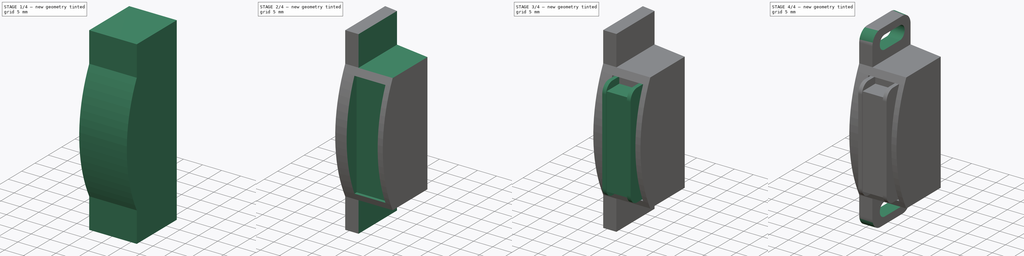
[diagram: build sequence overview — one tinted view per stage of 4, left to right]
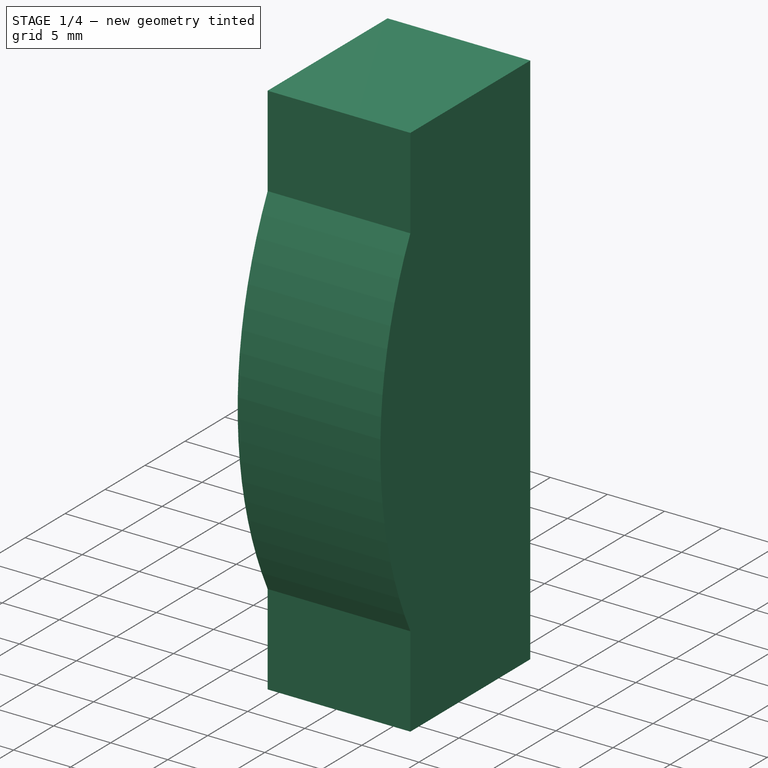
[diagram: stage 1 of 4 — iso view after this stage's code; geometry added in this stage tinted green]
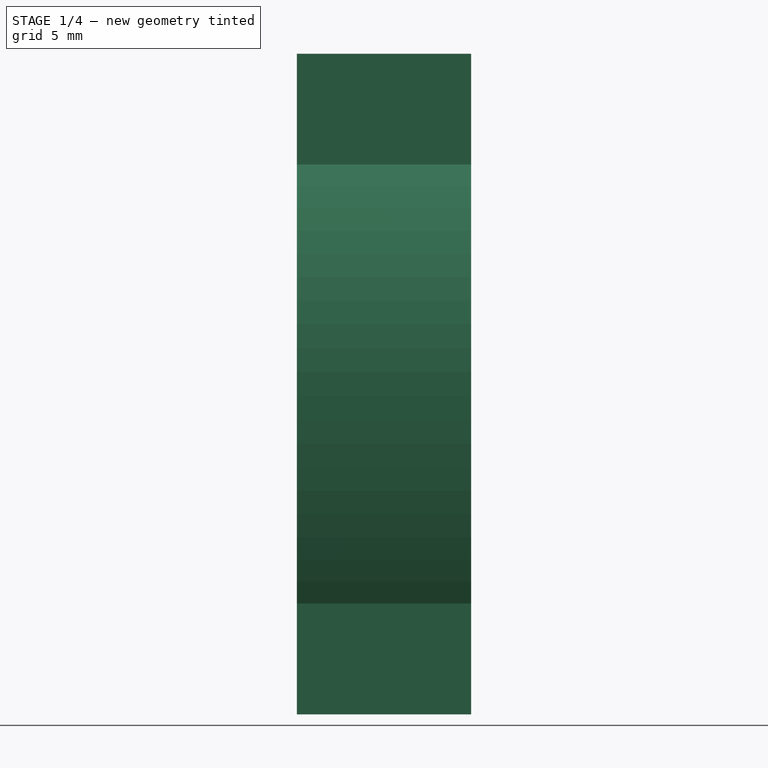
[diagram: stage 1 of 4 — front view after this stage's code; geometry added in this stage tinted green]
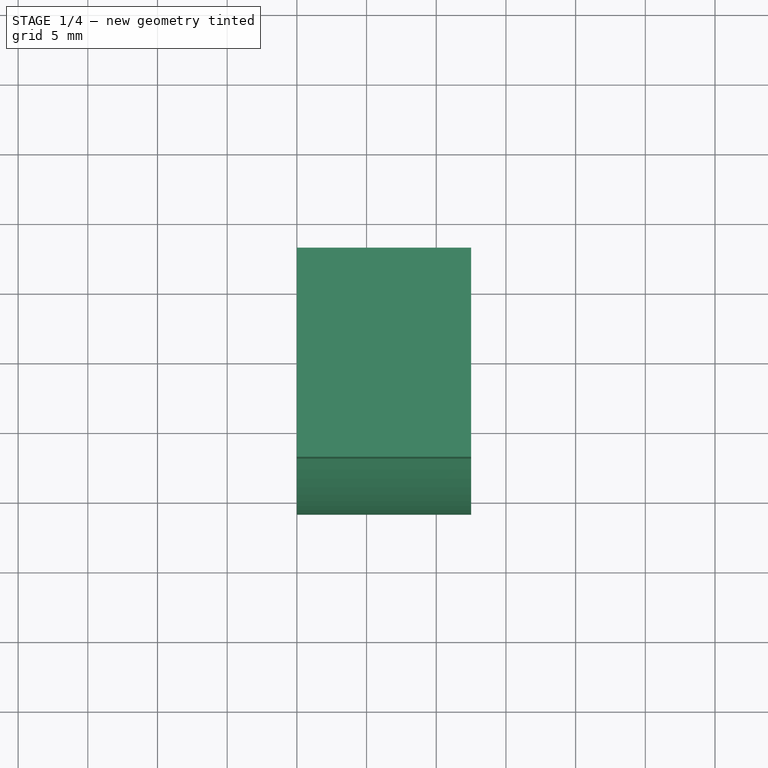
[diagram: stage 1 of 4 — top view after this stage's code; geometry added in this stage tinted green]
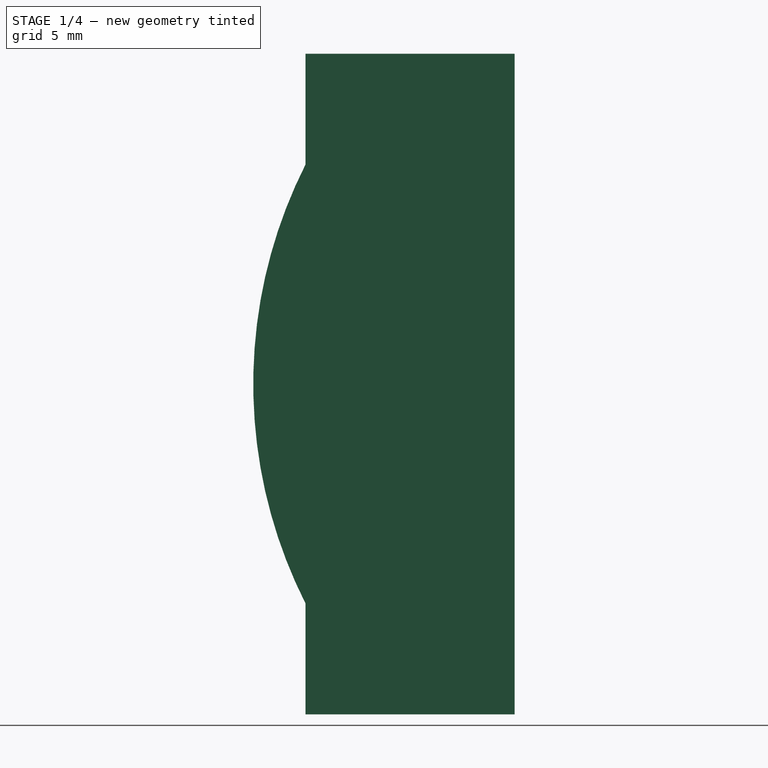
[diagram: stage 1 of 4 — right view after this stage's code; geometry added in this stage tinted green]
FCSTD DOCUMENT  (FreeCAD 0.17R13522 (Git))
Label: Mag_Lock_soprano
License: All rights reserved
LicenseURL: http://en.wikipedia.org/wiki/All_rights_reserved
objects: Sketcher::SketchObject×8, PartDesign::Pocket×5, PartDesign::Pad×3, PartDesign::Fillet×2, PartDesign::Body×1
note: 27 computed .brp shape members not serialized (recipe doc carries the construction recipe); baked Part::Feature solids carry a one-line shape summary decoded from their .brp

FEATURE [Sketcher::SketchObject] Sketch
  MapMode = 5
  Placement = pos=(0,0,0) rot=(0.57735,0.57735,0.57735;2.0944rad)
  Support = -> [YZ_Plane]
  sketch-geometry (4):
    g0: LineSegment StartX=7.5 StartY=23.7 StartZ=0 EndX=-12.5 EndY=23.7 EndZ=0
    g1: LineSegment StartX=-12.5 StartY=23.7 StartZ=0 EndX=-12.5 EndY=-23.7 EndZ=0
    g2: LineSegment StartX=-12.5 StartY=-23.7 StartZ=0 EndX=7.5 EndY=-23.7 EndZ=0
    g3: LineSegment StartX=7.5 StartY=-23.7 StartZ=0 EndX=7.5 EndY=23.7 EndZ=0
  constraints (12):
    c: Coincident(g0,g1)
    c: Coincident(g1,g2)
    c: Coincident(g2,g3)
    c: Coincident(g3,g0)
    c: Horizontal(g0)
    c: Horizontal(g2)
    c: Vertical(g1)
    c: Vertical(g3)
    c: DistanceX(g0) = 7.5
    c: DistanceY(g0) = 23.7
    c: Symmetric(g0,g2,g-1)
    c: DistanceX(g0,g0) = 20
FEATURE [PartDesign::Pad] Pad
  Length = 12.5
  Length2 = 100
  Placement = pos=(0,0,0) rot=(0.57735,0.57735,0.57735;2.0944rad)
  Profile = -> Sketch
  Type = 0
FEATURE [Sketcher::SketchObject] Sketch001
  MapMode = 5
  Placement = pos=(12.5,0,0) rot=(0.57735,0.57735,0.57735;2.0944rad)
  Support = -> [Pad]
  sketch-geometry (7):
    g0: LineSegment StartX=-7.5 StartY=23.7 StartZ=0 EndX=-7.5 EndY=15.75 EndZ=0
    g1: LineSegment StartX=-7.5 StartY=-15.75 StartZ=0 EndX=-7.5 EndY=-23.7 EndZ=0
    g2: LineSegment StartX=-7.5 StartY=-23.7 StartZ=0 EndX=-12.5 EndY=-23.7 EndZ=0
    g3: LineSegment StartX=-12.5 StartY=-23.7 StartZ=0 EndX=-12.5 EndY=23.7 EndZ=0
    g4: LineSegment StartX=-12.5 StartY=23.7 StartZ=0 EndX=-7.5 EndY=23.7 EndZ=0
    g5: ArcOfCircle CenterX=23.7 CenterY=0 CenterZ=0 NormalX=0 NormalY=0 NormalZ=1 AngleXU=0 Radius=34.95 StartAngle=2.67411 EndAngle=3.60908
    g6: LineSegment [constr] StartX=-11.25 StartY=0 StartZ=0 EndX=0 EndY=0 EndZ=0
  constraints (22):
    c: Vertical(g0)
    c: Vertical(g1)
    c: Coincident(g1,g2)
    c: Horizontal(g2)
    c: Coincident(g2,g3)
    c: Vertical(g3)
    c: Coincident(g3,g4)
    c: Coincident(g4,g0)
    c: Horizontal(g4)
    c: Coincident(g5,g0)
    c: Coincident(g5,g1)
    c: Equal(g0,g1)
    c: Equal(g4,g2)
    c: DistanceX(g2,g2) = 5
    c: DistanceX(g2) = -12.5
    c: DistanceY(g2) = -23.7
    c: Symmetric(g3,g2,g-1)
    c: DistanceY(g1,g0) = 31.5
    c: PointOnObject(g6,g5)
    c: Coincident(g6,g-1)
    c: Horizontal(g6)
    c: DistanceX(g6,g6) = 11.25
FEATURE [PartDesign::Pocket] Pocket
  BaseFeature = -> Pad
  Length = 5
  Length2 = 100
  Placement = pos=(0,0,0) rot=(0.57735,0.57735,0.57735;2.0944rad)
  Profile = -> Sketch001
  Type = 1
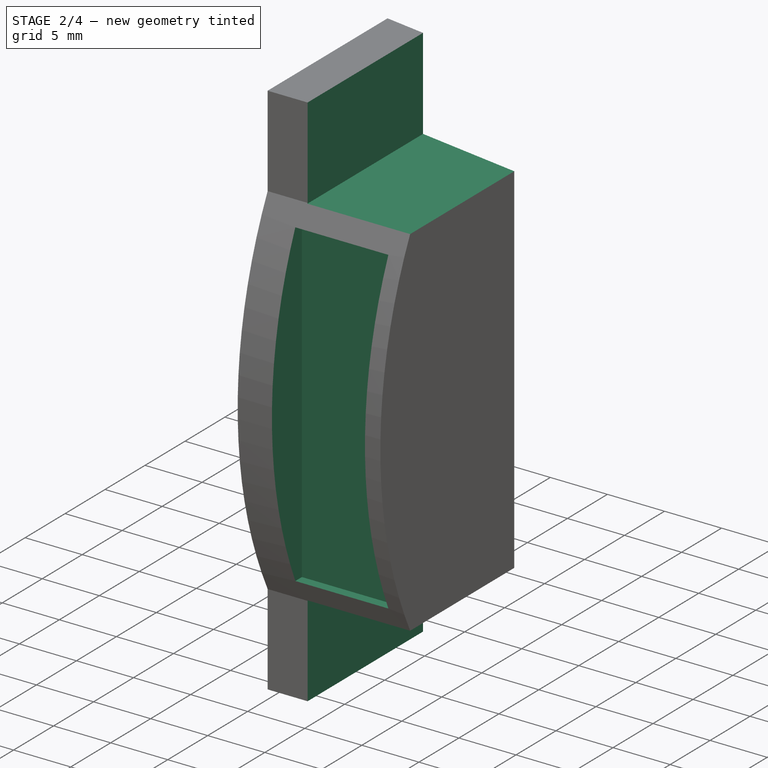
[diagram: stage 2 of 4 — iso view after this stage's code; geometry added in this stage tinted green]
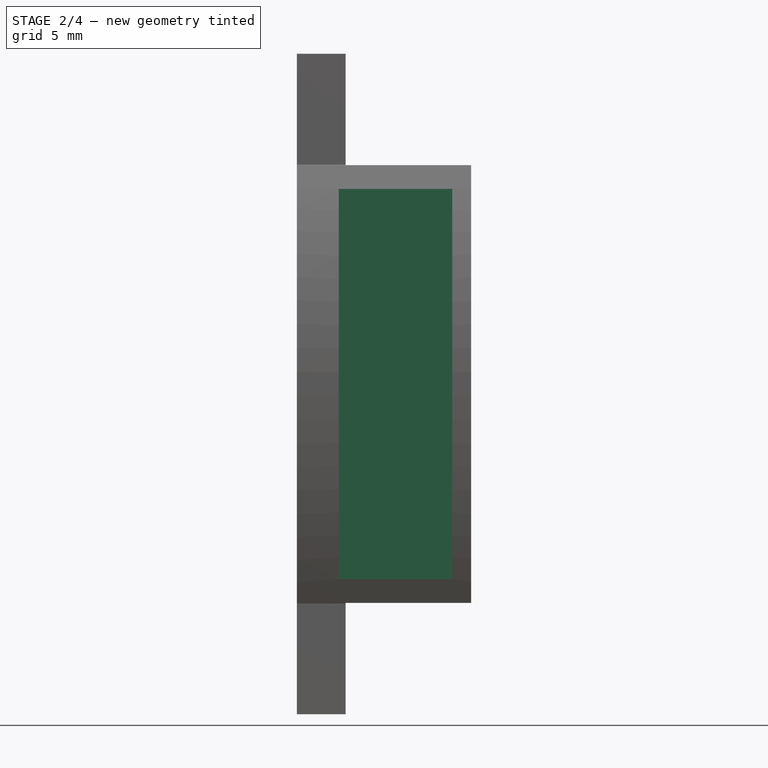
[diagram: stage 2 of 4 — front view after this stage's code; geometry added in this stage tinted green]
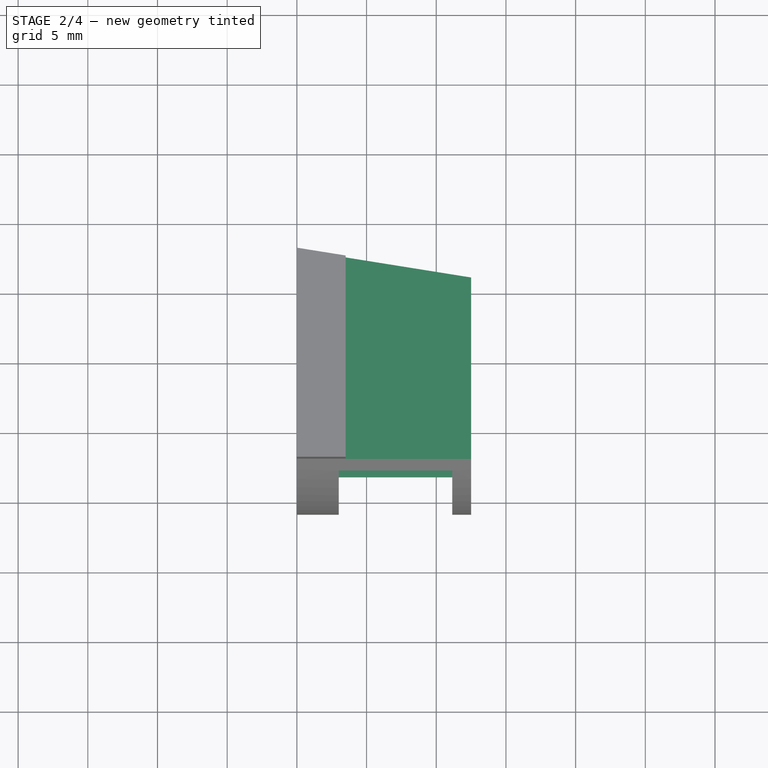
[diagram: stage 2 of 4 — top view after this stage's code; geometry added in this stage tinted green]
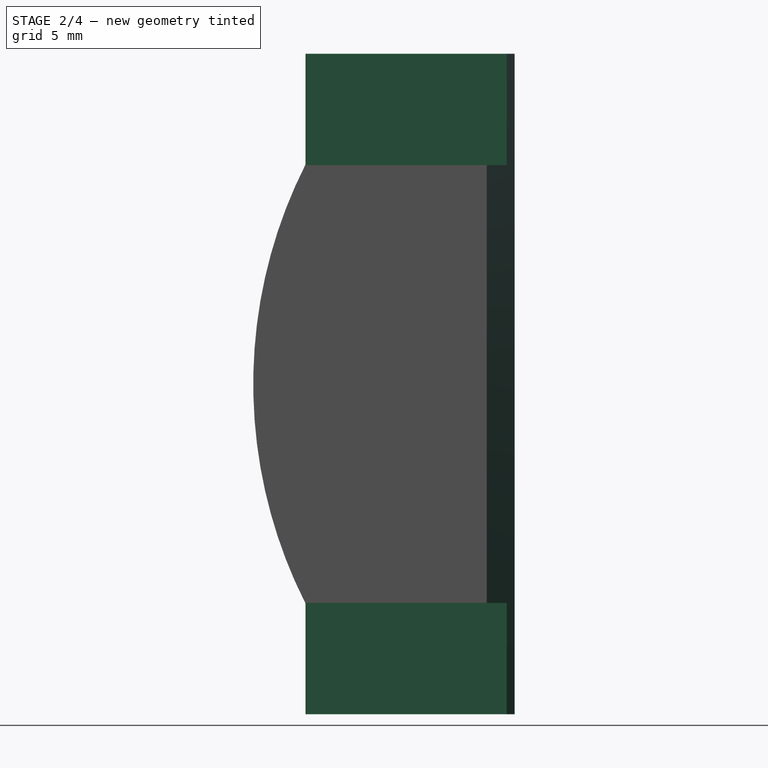
[diagram: stage 2 of 4 — right view after this stage's code; geometry added in this stage tinted green]
FEATURE [Sketcher::SketchObject] Sketch002
  MapMode = 5
  Placement = pos=(0,0,-23.7) rot=(0.707107,0.707107,0;3.14159rad)
  Support = -> [Pocket]
  sketch-geometry (3):
    g0: LineSegment StartX=7.5 StartY=0 StartZ=0 EndX=7.5 EndY=12.5 EndZ=0
    g1: LineSegment StartX=7.5 StartY=12.5 StartZ=0 EndX=5.5 EndY=12.5 EndZ=0
    g2: LineSegment StartX=5.5 StartY=12.5 StartZ=0 EndX=7.5 EndY=0 EndZ=0
  constraints (9):
    c: PointOnObject(g0,g-1)
    c: Vertical(g0)
    c: Coincident(g0,g1)
    c: Horizontal(g1)
    c: Coincident(g1,g2)
    c: Coincident(g2,g0)
    c: DistanceY(g0,g0) = 12.5
    c: DistanceX(g1,g1) = 2
    c: DistanceX(g0) = 7.5
FEATURE [PartDesign::Pocket] Pocket001
  BaseFeature = -> Pocket
  Length = 5
  Length2 = 100
  Placement = pos=(0,0,0) rot=(0.57735,0.57735,0.57735;2.0944rad)
  Profile = -> Sketch002
  Type = 1
FEATURE [Sketcher::SketchObject] Sketch003
  MapMode = 5
  Placement = pos=(12.5,0,0) rot=(0.57735,0.57735,0.57735;2.0944rad)
  Support = -> [Pocket001]
  sketch-geometry (8):
    g0: LineSegment StartX=-12.5 StartY=15.7 StartZ=0 EndX=7.5 EndY=15.7 EndZ=0
    g1: LineSegment StartX=7.5 StartY=15.7 StartZ=0 EndX=7.5 EndY=23.7 EndZ=0
    g2: LineSegment StartX=7.5 StartY=23.7 StartZ=0 EndX=-12.5 EndY=23.7 EndZ=0
    g3: LineSegment StartX=-12.5 StartY=23.7 StartZ=0 EndX=-12.5 EndY=15.7 EndZ=0
    g4: LineSegment StartX=-12.5 StartY=-23.7 StartZ=0 EndX=7.5 EndY=-23.7 EndZ=0
    g5: LineSegment StartX=7.5 StartY=-23.7 StartZ=0 EndX=7.5 EndY=-15.7 EndZ=0
    g6: LineSegment StartX=7.5 StartY=-15.7 StartZ=0 EndX=-12.5 EndY=-15.7 EndZ=0
    g7: LineSegment StartX=-12.5 StartY=-15.7 StartZ=0 EndX=-12.5 EndY=-23.7 EndZ=0
  constraints (23):
    c: Coincident(g0,g1)
    c: Coincident(g1,g2)
    c: Coincident(g2,g3)
    c: Coincident(g3,g0)
    c: Horizontal(g0)
    c: Horizontal(g2)
    c: Vertical(g1)
    c: Vertical(g3)
    c: Coincident(g4,g5)
    c: Coincident(g5,g6)
    c: Coincident(g6,g7)
    c: Coincident(g7,g4)
    c: Horizontal(g4)
    c: Horizontal(g6)
    c: Vertical(g5)
    c: Vertical(g7)
    c: DistanceX(g2,g2) = 20
    c: DistanceY(g1,g1) = 8
    c: DistanceX(g1) = 7.5
    c: DistanceY(g1) = 23.7
    c: Equal(g4,g2)
    c: Equal(g1,g5)
    c: Symmetric(g1,g4,g-1)
FEATURE [PartDesign::Pocket] Pocket002
  BaseFeature = -> Pocket001
  Length = 9
  Length2 = 100
  Placement = pos=(0,0,0) rot=(0.57735,0.57735,0.57735;2.0944rad)
  Profile = -> Sketch003
  Type = 0
FEATURE [Sketcher::SketchObject] Sketch004
  MapMode = 5
  Placement = pos=(0,-7.5,0) rot=(0.57735,0.57735,-0.57735;2.0944rad)
  Support = -> [Pocket002]
  sketch-geometry (4):
    g0: LineSegment StartX=-14 StartY=11.15 StartZ=0 EndX=14 EndY=11.15 EndZ=0
    g1: LineSegment StartX=14 StartY=11.15 StartZ=0 EndX=14 EndY=3 EndZ=0
    g2: LineSegment StartX=14 StartY=3 StartZ=0 EndX=-14 EndY=3 EndZ=0
    g3: LineSegment StartX=-14 StartY=3 StartZ=0 EndX=-14 EndY=11.15 EndZ=0
  constraints (12):
    c: Coincident(g0,g1)
    c: Coincident(g1,g2)
    c: Coincident(g2,g3)
    c: Coincident(g3,g0)
    c: Horizontal(g0)
    c: Horizontal(g2)
    c: Vertical(g1)
    c: Vertical(g3)
    c: DistanceY(g3,g3) = 8.15
    c: DistanceX(g0,g0) = 28
    c: DistanceX(g1) = 14
    c: DistanceY(g1) = 3
FEATURE [PartDesign::Pocket] Pocket003
  BaseFeature = -> Pocket002
  Length = 5
  Length2 = 100
  Placement = pos=(0,0,0) rot=(0.57735,0.57735,0.57735;2.0944rad)
  Profile = -> Sketch004
  Reversed = true
  Type = 1
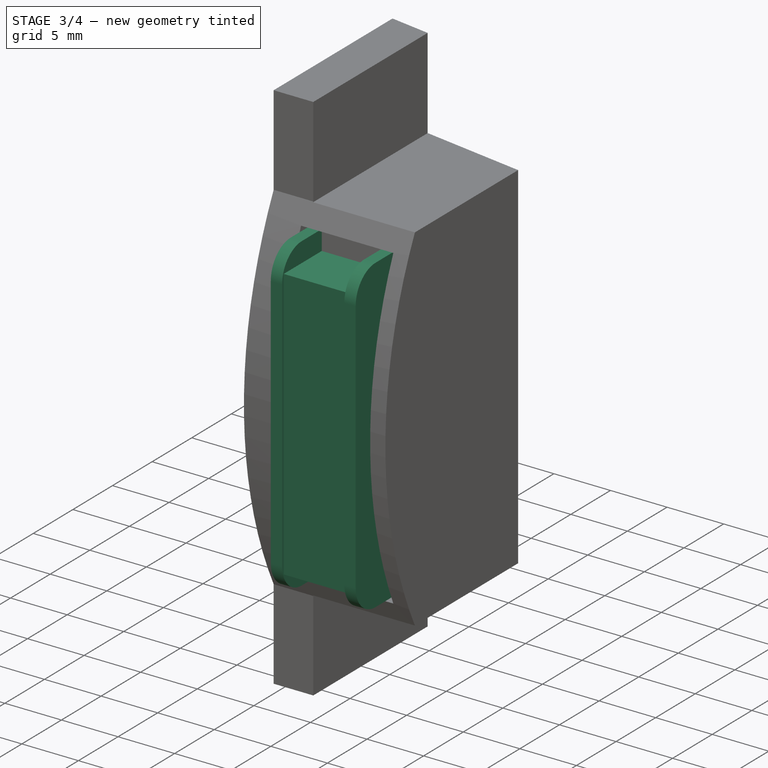
[diagram: stage 3 of 4 — iso view after this stage's code; geometry added in this stage tinted green]
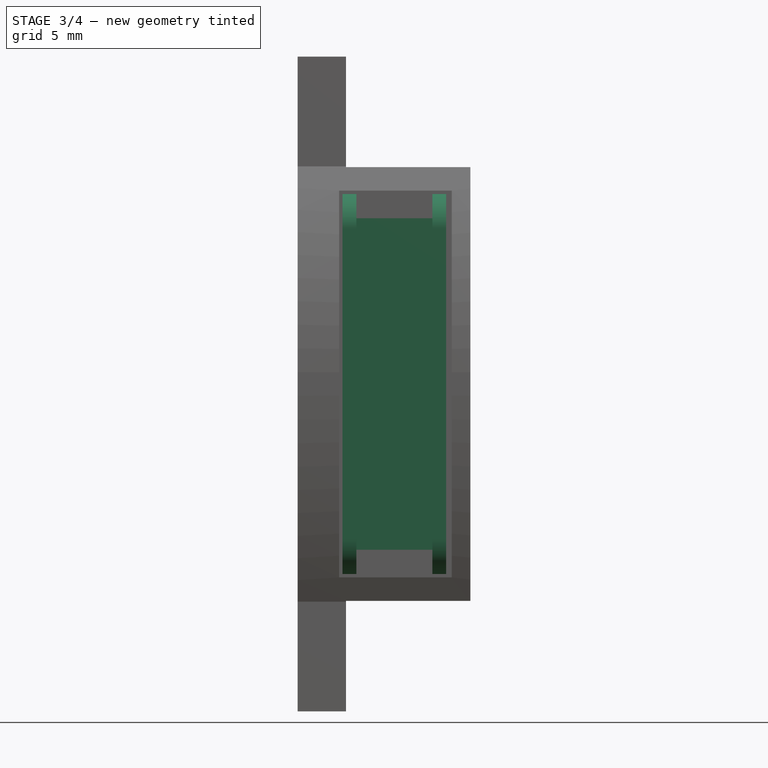
[diagram: stage 3 of 4 — front view after this stage's code; geometry added in this stage tinted green]
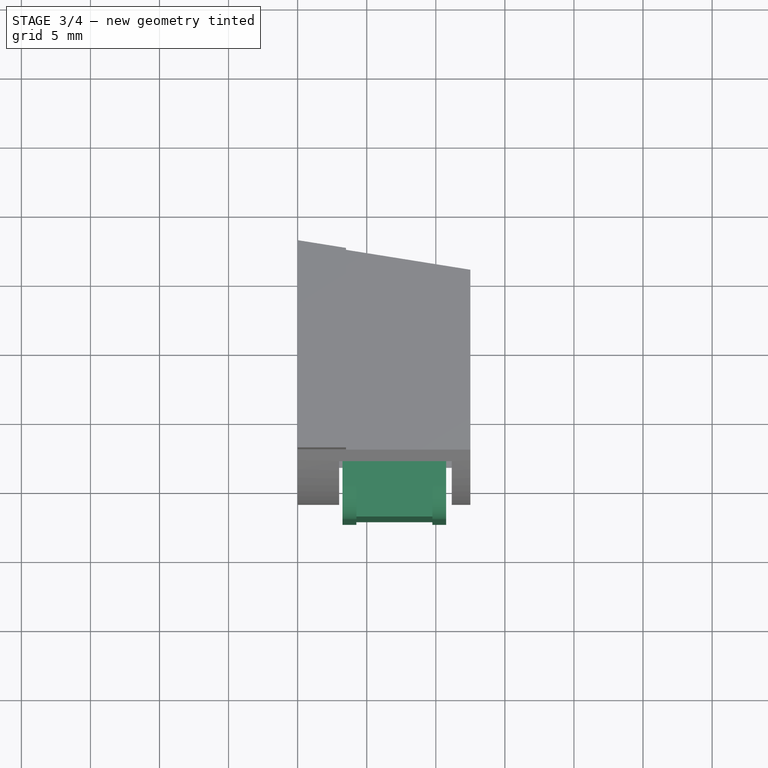
[diagram: stage 3 of 4 — top view after this stage's code; geometry added in this stage tinted green]
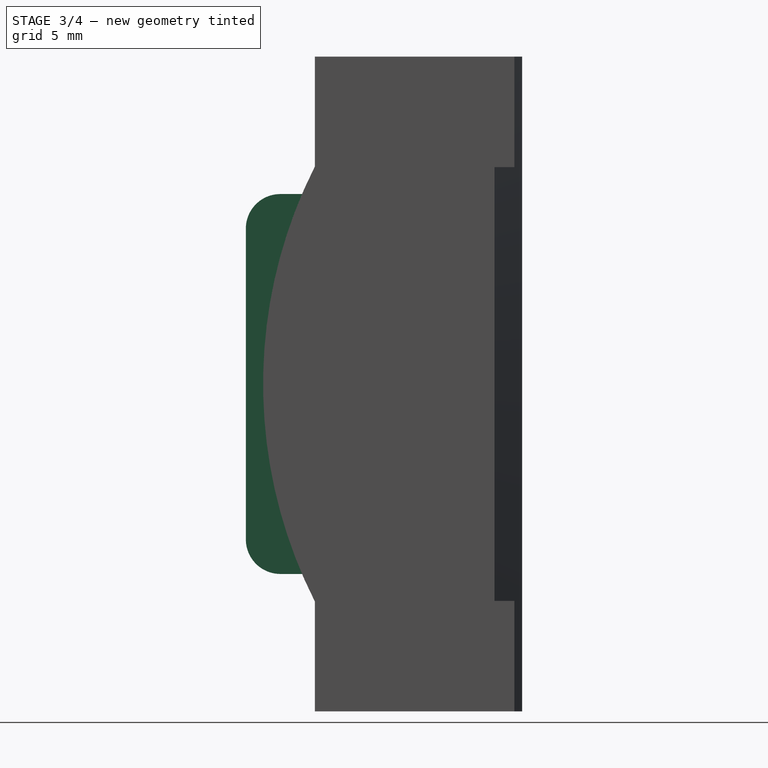
[diagram: stage 3 of 4 — right view after this stage's code; geometry added in this stage tinted green]
FEATURE [Sketcher::SketchObject] Sketch005
  MapMode = 5
  Placement = pos=(0,-7.5,0) rot=(0.57735,0.57735,-0.57735;2.0944rad)
  Support = -> [Pocket003]
  sketch-geometry (8):
    g0: LineSegment StartX=-13.75 StartY=10.75 StartZ=0 EndX=13.75 EndY=10.75 EndZ=0
    g1: LineSegment StartX=13.75 StartY=10.75 StartZ=0 EndX=13.75 EndY=9.75 EndZ=0
    g2: LineSegment StartX=13.75 StartY=9.75 StartZ=0 EndX=-13.75 EndY=9.75 EndZ=0
    g3: LineSegment StartX=-13.75 StartY=9.75 StartZ=0 EndX=-13.75 EndY=10.75 EndZ=0
    g4: LineSegment StartX=-13.75 StartY=4.25 StartZ=0 EndX=13.75 EndY=4.25 EndZ=0
    g5: LineSegment StartX=13.75 StartY=4.25 StartZ=0 EndX=13.75 EndY=3.25 EndZ=0
    g6: LineSegment StartX=13.75 StartY=3.25 StartZ=0 EndX=-13.75 EndY=3.25 EndZ=0
    g7: LineSegment StartX=-13.75 StartY=3.25 StartZ=0 EndX=-13.75 EndY=4.25 EndZ=0
  constraints (24):
    c: Coincident(g0,g1)
    c: Coincident(g1,g2)
    c: Coincident(g2,g3)
    c: Coincident(g3,g0)
    c: Horizontal(g0)
    c: Horizontal(g2)
    c: Vertical(g1)
    c: Vertical(g3)
    c: Coincident(g4,g5)
    c: Coincident(g5,g6)
    c: Coincident(g6,g7)
    c: Coincident(g7,g4)
    c: Horizontal(g4)
    c: Horizontal(g6)
    c: Vertical(g5)
    c: Vertical(g7)
    c: DistanceX(g0,g0) = 27.5
    c: DistanceY(g3,g3) = 1
    c: Equal(g0,g6)
    c: Equal(g7,g3)
    c: Symmetric(g6,g5,g-2)
    c: PointOnObject(g4,g3)
    c: DistanceY(g6) = 3.25
    c: DistanceY(g6,g0) = 7.5
FEATURE [PartDesign::Pad] Pad001
  BaseFeature = -> Pocket003
  Length = 5
  Length2 = 100
  Placement = pos=(0,0,0) rot=(0.57735,0.57735,0.57735;2.0944rad)
  Profile = -> Sketch005
  Type = 0
FEATURE [Sketcher::SketchObject] Sketch006
  MapMode = 5
  Placement = pos=(0,-7.5,0) rot=(0.57735,0.57735,-0.57735;2.0944rad)
  Support = -> [Pad001]
  sketch-geometry (4):
    g0: LineSegment StartX=-12 StartY=9.75 StartZ=0 EndX=12 EndY=9.75 EndZ=0
    g1: LineSegment StartX=12 StartY=9.75 StartZ=0 EndX=12 EndY=4.25 EndZ=0
    g2: LineSegment StartX=12 StartY=4.25 StartZ=0 EndX=-12 EndY=4.25 EndZ=0
    g3: LineSegment StartX=-12 StartY=4.25 StartZ=0 EndX=-12 EndY=9.75 EndZ=0
  constraints (12):
    c: Coincident(g0,g1)
    c: Coincident(g1,g2)
    c: Coincident(g2,g3)
    c: Coincident(g3,g0)
    c: Horizontal(g0)
    c: Horizontal(g2)
    c: Vertical(g1)
    c: Vertical(g3)
    c: DistanceX(g0,g0) = 24
    c: Symmetric(g0,g0,g-2)
    c: DistanceY(g1) = 4.25
    c: DistanceY(g1,g1) = 5.5
FEATURE [PartDesign::Pad] Pad002
  BaseFeature = -> Pad001
  Length = 4.8
  Length2 = 100
  Placement = pos=(0,0,0) rot=(0.57735,0.57735,0.57735;2.0944rad)
  Profile = -> Sketch006
  Type = 0
FEATURE [PartDesign::Fillet] Fillet
  Base = -> Pad002 [Edge68,Edge78,Edge72,Edge74]
  BaseFeature = -> Pad002
  Placement = pos=(0,0,0) rot=(0.57735,0.57735,0.57735;2.0944rad)
  Radius = 2.5
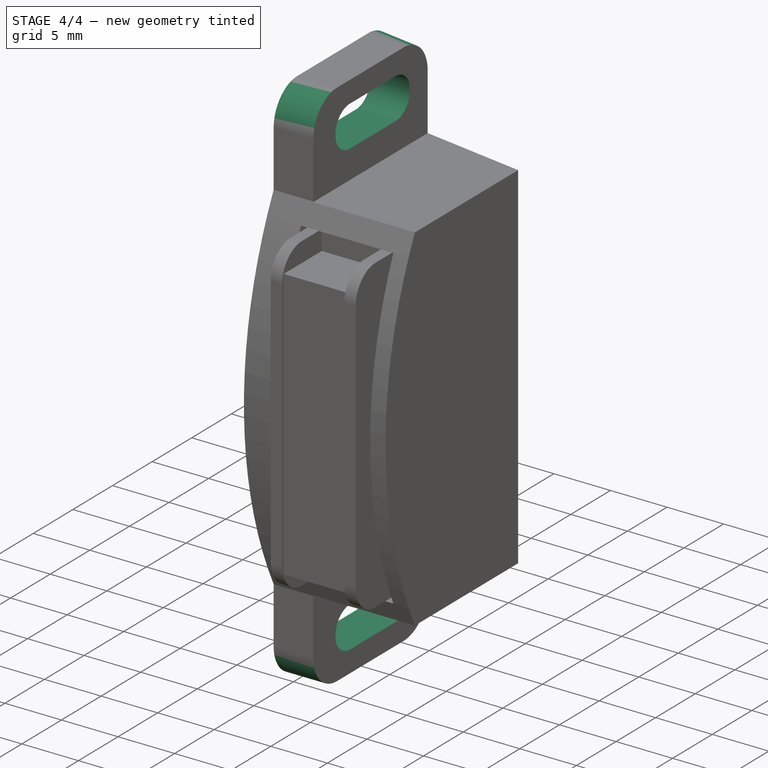
[diagram: stage 4 of 4 — iso view after this stage's code; geometry added in this stage tinted green]
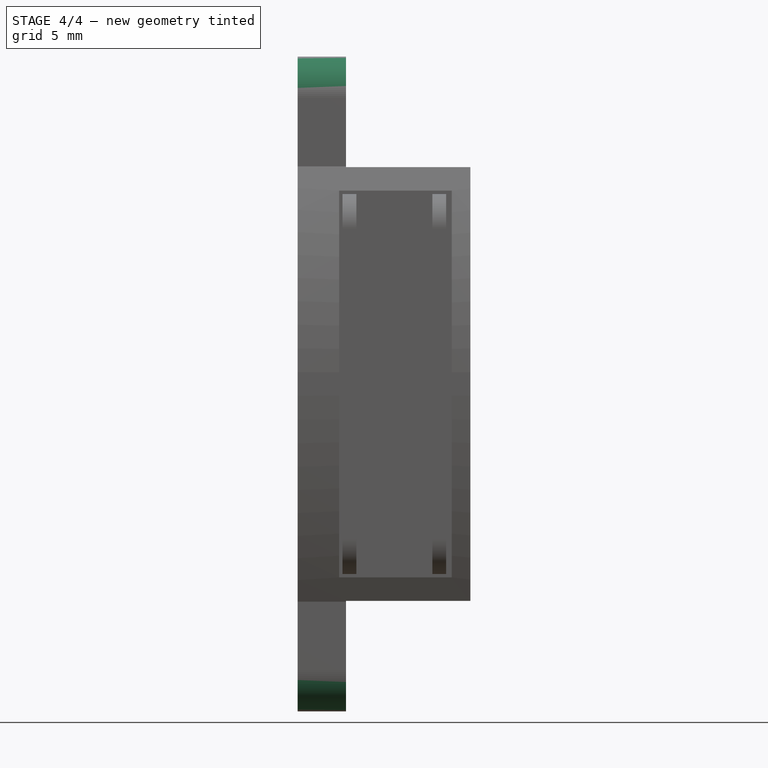
[diagram: stage 4 of 4 — front view after this stage's code; geometry added in this stage tinted green]
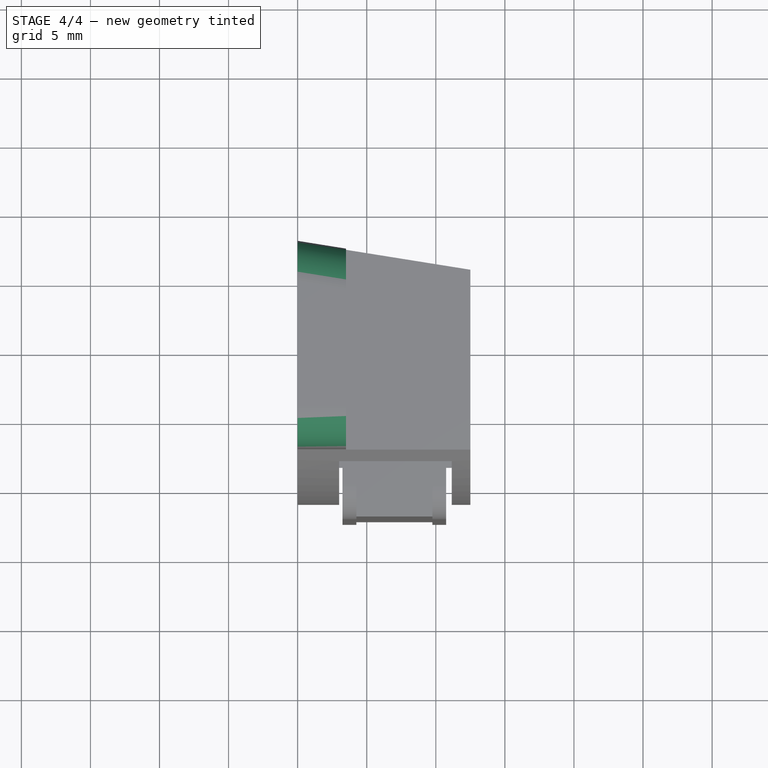
[diagram: stage 4 of 4 — top view after this stage's code; geometry added in this stage tinted green]
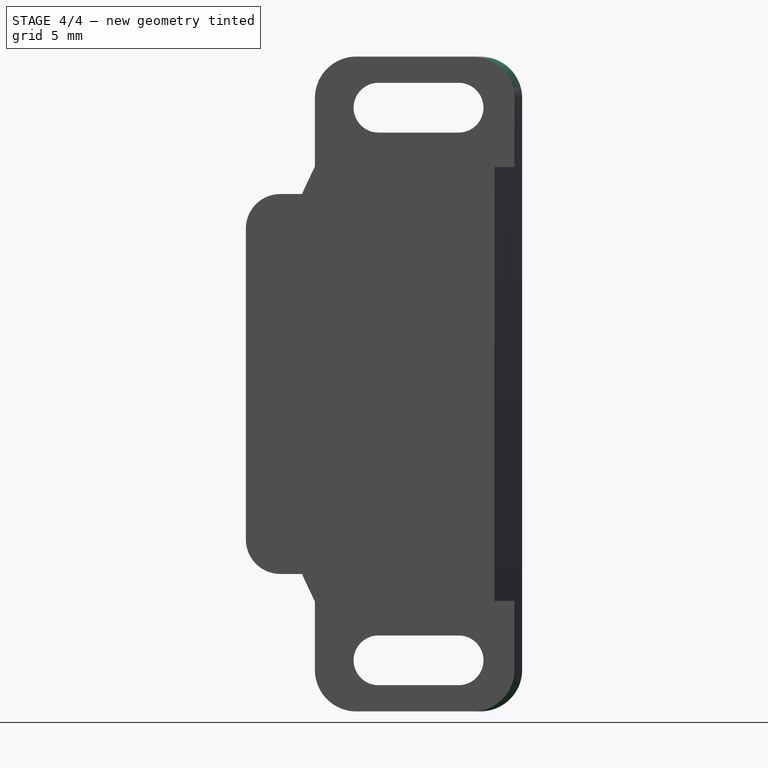
[diagram: stage 4 of 4 — right view after this stage's code; geometry added in this stage tinted green]
FEATURE [PartDesign::Fillet] Fillet001
  Base = -> Fillet [Edge83,Edge90,Edge89,Edge84]
  BaseFeature = -> Fillet
  Placement = pos=(0,0,0) rot=(0.57735,0.57735,0.57735;2.0944rad)
  Radius = 3
FEATURE [Sketcher::SketchObject] Sketch007
  MapMode = 5
  Placement = pos=(3.5,0,0) rot=(0.57735,0.57735,0.57735;2.0944rad)
  Support = -> [Fillet001]
  sketch-geometry (8):
    g0: ArcOfCircle CenterX=-2.9 CenterY=20 CenterZ=0 NormalX=0 NormalY=0 NormalZ=1 AngleXU=0 Radius=1.8 StartAngle=1.5708 EndAngle=4.71239
    g1: ArcOfCircle CenterX=2.9 CenterY=20 CenterZ=0 NormalX=0 NormalY=0 NormalZ=1 AngleXU=0 Radius=1.8 StartAngle=4.71239 EndAngle=7.85398
    g2: LineSegment StartX=-2.9 StartY=18.2 StartZ=0 EndX=2.9 EndY=18.2 EndZ=0
    g3: LineSegment StartX=-2.9 StartY=21.8 StartZ=0 EndX=2.9 EndY=21.8 EndZ=0
    g4: ArcOfCircle CenterX=-2.9 CenterY=-20 CenterZ=0 NormalX=0 NormalY=0 NormalZ=1 AngleXU=0 Radius=1.8 StartAngle=1.5708 EndAngle=4.71239
    g5: ArcOfCircle CenterX=2.9 CenterY=-20 CenterZ=0 NormalX=0 NormalY=0 NormalZ=1 AngleXU=0 Radius=1.8 StartAngle=4.71239 EndAngle=7.85398
    g6: LineSegment StartX=-2.9 StartY=-21.8 StartZ=0 EndX=2.9 EndY=-21.8 EndZ=0
    g7: LineSegment StartX=-2.9 StartY=-18.2 StartZ=0 EndX=2.9 EndY=-18.2 EndZ=0
  constraints (19):
    c: Tangent(g0,g3) = 1.5708
    c: Tangent(g0,g2) = -1.5708
    c: Tangent(g2,g1) = -1.5708
    c: Tangent(g3,g1) = 1.5708
    c: Horizontal(g2)
    c: Equal(g0,g1)
    c: Tangent(g4,g7) = 1.5708
    c: Tangent(g4,g6) = -1.5708
    c: Tangent(g6,g5) = -1.5708
    c: Tangent(g7,g5) = 1.5708
    c: Horizontal(g6)
    c: Equal(g4,g5)
    c: Symmetric(g0,g1,g-2)
    c: Symmetric(g1,g5,g-1)
    c: Equal(g3,g7)
    c: Equal(g4,g0)
    c: Radius(g0) = 1.8
    c: DistanceY(g5,g1) = 40
    c: DistanceX(g3,g3) = 5.8
FEATURE [PartDesign::Pocket] Pocket004
  BaseFeature = -> Fillet001
  Length = 5
  Length2 = 100
  Placement = pos=(0,0,0) rot=(0.57735,0.57735,0.57735;2.0944rad)
  Profile = -> Sketch007
  Type = 1
FEATURE [PartDesign::Body] Body
  Group = -> [Sketch,Pad,Sketch001,Pocket,Sketch002,Pocket001,Sketch003,Pocket002,Sketch004,Pocket003,Sketch005,Pad001,Sketch006,Pad002,Fillet,Fillet001,Sketch007,Pocket004]
  Origin = -> Origin
  Tip = -> Pocket004
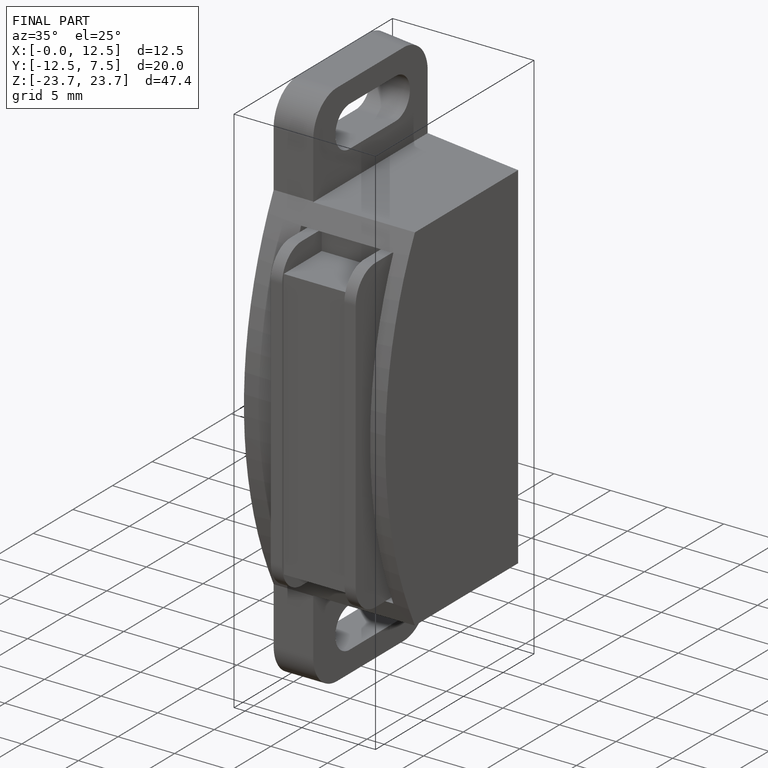
[diagram: finished part — iso view with bounding-box wireframe]
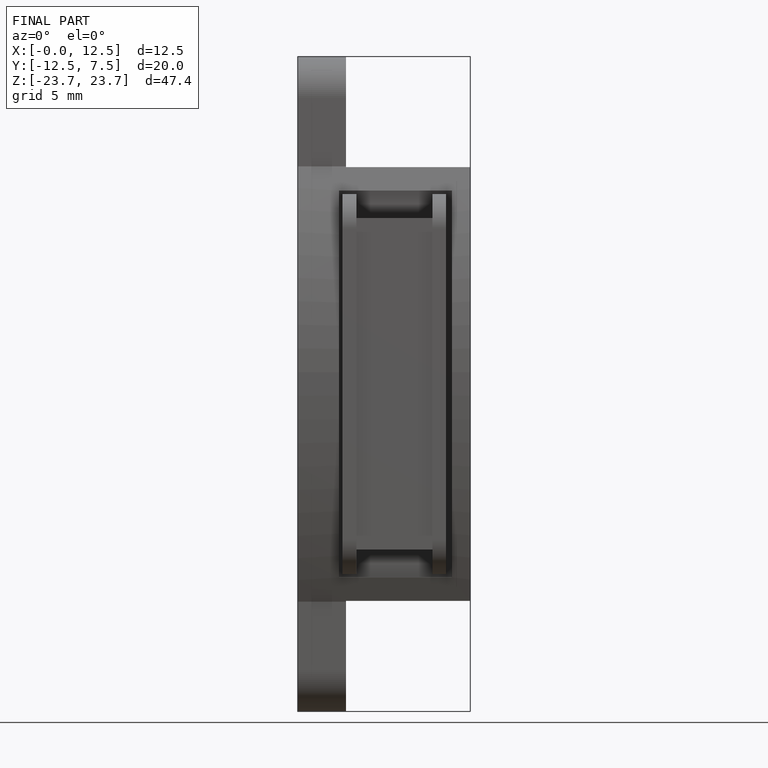
[diagram: finished part — front view with bounding-box wireframe]
